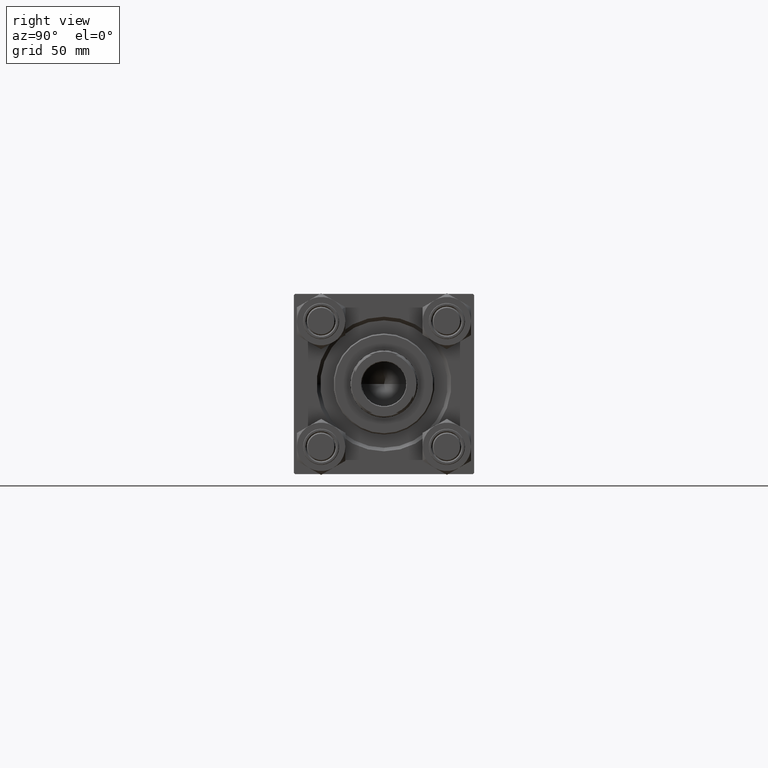
[diagram: clean part render]
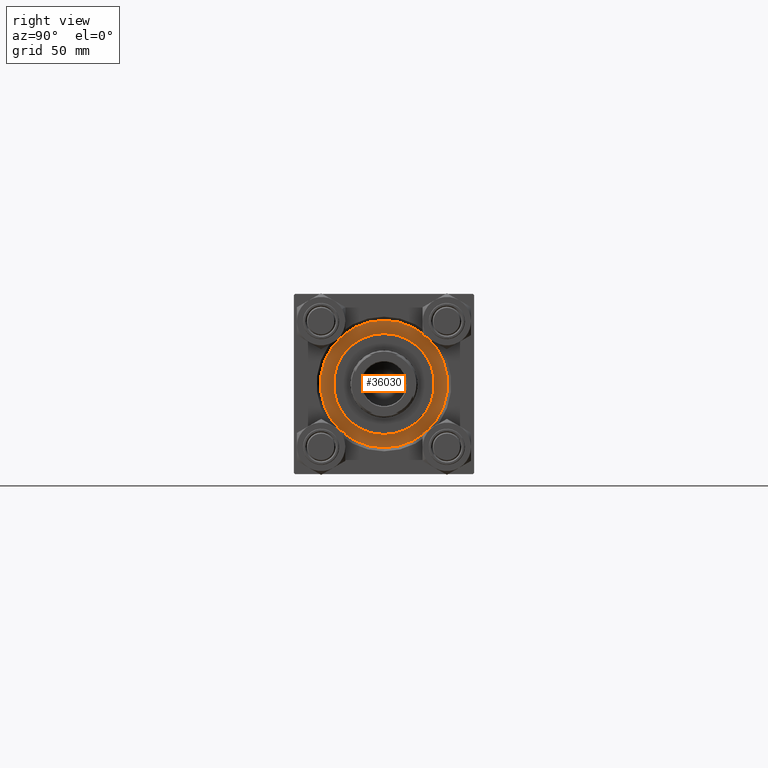
[diagram: same view with one face highlighted and labeled with its STEP entity id]
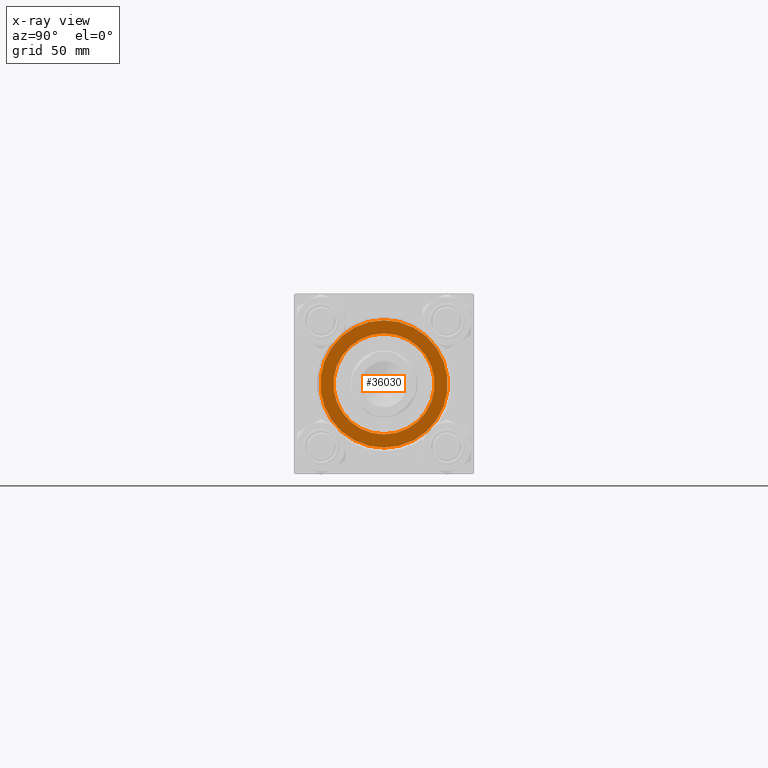
[diagram: x-ray of the same camera — body ghosted, the highlighted face saturated]
A machine part, right view. The second image highlights one B-rep face of the part: STEP entity #36030.
The next image is the same camera in x-ray: the body ghosted, the highlighted face saturated — about 0% of this face is hidden behind the body in this view.
In plain terms, the highlighted planar face has unit normal (1, 0, -0).
Its self-contained STEP definition (entity closure, byte-faithful):
#33 = ORIENTED_EDGE ( 'NONE', *, *, #25218, .T. ) ;
#1268 = CARTESIAN_POINT ( 'NONE',  ( 0.000000000000000000, 0.000000000000000000, 28.69999999999999929 ) ) ;
#1300 = EDGE_LOOP ( 'NONE', ( #13712, #16948 ) ) ;
#1902 = CIRCLE ( 'NONE', #48517, 26.50000000000000355 ) ;
#2623 = DIRECTION ( 'NONE',  ( 1.000000000000000000, 0.000000000000000000, 0.000000000000000000 ) ) ;
#3197 = DIRECTION ( 'NONE',  ( 0.000000000000000000, 0.000000000000000000, 1.000000000000000000 ) ) ;
#5359 = CARTESIAN_POINT ( 'NONE',  ( -21.00000000000000000, 0.000000000000000000, 28.69999999999999929 ) ) ;
#6667 = EDGE_CURVE ( 'NONE', #20920, #28893, #34745, .T. ) ;
#8029 = DIRECTION ( 'NONE',  ( 0.000000000000000000, 0.000000000000000000, 1.000000000000000000 ) ) ;
#9299 = DIRECTION ( 'NONE',  ( 0.000000000000000000, 0.000000000000000000, 1.000000000000000000 ) ) ;
#9303 = CIRCLE ( 'NONE', #29405, 26.50000000000000355 ) ;
#9938 = AXIS2_PLACEMENT_3D ( 'NONE', #10170, #37074, #2623 ) ;
#10170 = CARTESIAN_POINT ( 'NONE',  ( 0.000000000000000000, 0.000000000000000000, 28.69999999999999929 ) ) ;
#12613 = VERTEX_POINT ( 'NONE', #43699 ) ;
#12749 = EDGE_CURVE ( 'NONE', #28893, #20920, #30823, .T. ) ;
#12842 = FACE_OUTER_BOUND ( 'NONE', #47526, .T. ) ;
#13057 = AXIS2_PLACEMENT_3D ( 'NONE', #18290, #26084, #48200 ) ;
#13712 = ORIENTED_EDGE ( 'NONE', *, *, #6667, .F. ) ;
#16948 = ORIENTED_EDGE ( 'NONE', *, *, #12749, .F. ) ;
#18045 = VERTEX_POINT ( 'NONE', #35755 ) ;
#18172 = EDGE_CURVE ( 'NONE', #12613, #18045, #9303, .T. ) ;
#18290 = CARTESIAN_POINT ( 'NONE',  ( 0.000000000000000000, 0.000000000000000000, 28.69999999999999929 ) ) ;
#19149 = CARTESIAN_POINT ( 'NONE',  ( 0.000000000000000000, 0.000000000000000000, 28.69999999999999929 ) ) ;
#20920 = VERTEX_POINT ( 'NONE', #5359 ) ;
#21774 = ORIENTED_EDGE ( 'NONE', *, *, #18172, .T. ) ;
#25218 = EDGE_CURVE ( 'NONE', #18045, #12613, #1902, .T. ) ;
#25579 = CARTESIAN_POINT ( 'NONE',  ( 21.00000000000000000, 2.571758278209441661E-15, 28.69999999999999929 ) ) ;
#26084 = DIRECTION ( 'NONE',  ( 0.000000000000000000, 0.000000000000000000, 1.000000000000000000 ) ) ;
#26599 = DIRECTION ( 'NONE',  ( 1.000000000000000000, 0.000000000000000000, 0.000000000000000000 ) ) ;
#28193 = DIRECTION ( 'NONE',  ( 1.000000000000000000, 0.000000000000000000, -0.000000000000000000 ) ) ;
#28893 = VERTEX_POINT ( 'NONE', #25579 ) ;
#29405 = AXIS2_PLACEMENT_3D ( 'NONE', #19149, #8029, #46023 ) ;
#30823 = CIRCLE ( 'NONE', #9938, 21.00000000000000000 ) ;
#34745 = CIRCLE ( 'NONE', #13057, 21.00000000000000000 ) ;
#35733 = FACE_BOUND ( 'NONE', #1300, .T. ) ;
#35755 = CARTESIAN_POINT ( 'NONE',  ( -26.50000000000000355, 0.000000000000000000, 28.69999999999999929 ) ) ;
#36030 = ADVANCED_FACE ( 'NONE', ( #35733, #12842 ), #36475, .T. ) ;
#36475 = PLANE ( 'NONE',  #44007 ) ;
#37074 = DIRECTION ( 'NONE',  ( 0.000000000000000000, 0.000000000000000000, 1.000000000000000000 ) ) ;
#37647 = CARTESIAN_POINT ( 'NONE',  ( 0.000000000000000000, 0.000000000000000000, 28.69999999999999929 ) ) ;
#43699 = CARTESIAN_POINT ( 'NONE',  ( 26.50000000000000355, 3.245314017740486554E-15, 28.69999999999999929 ) ) ;
#44007 = AXIS2_PLACEMENT_3D ( 'NONE', #1268, #9299, #28193 ) ;
#46023 = DIRECTION ( 'NONE',  ( 1.000000000000000000, 0.000000000000000000, 0.000000000000000000 ) ) ;
#47526 = EDGE_LOOP ( 'NONE', ( #33, #21774 ) ) ;
#48200 = DIRECTION ( 'NONE',  ( 1.000000000000000000, 0.000000000000000000, 0.000000000000000000 ) ) ;
#48517 = AXIS2_PLACEMENT_3D ( 'NONE', #37647, #3197, #26599 ) ;